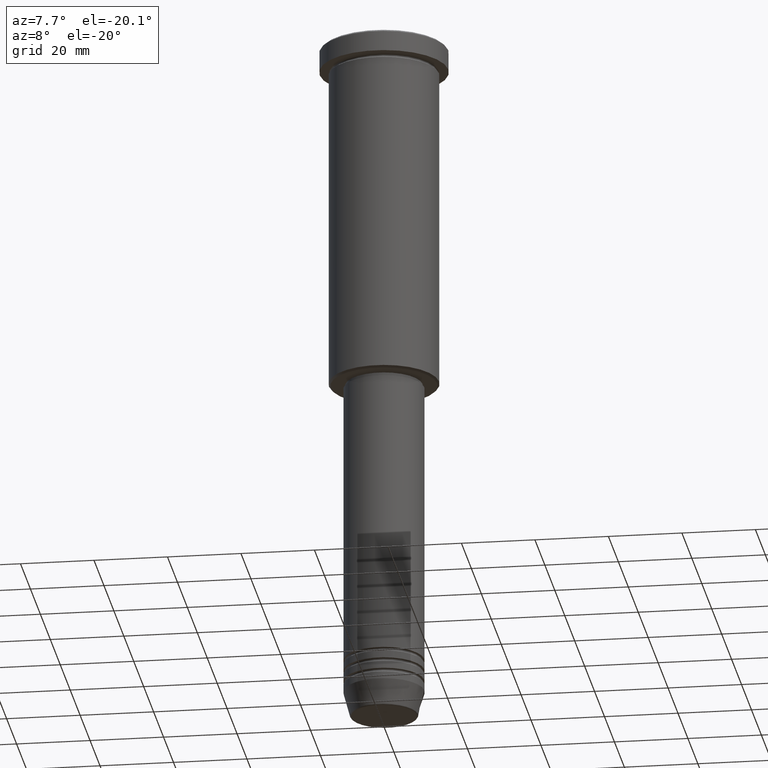
[diagram: clean part render]
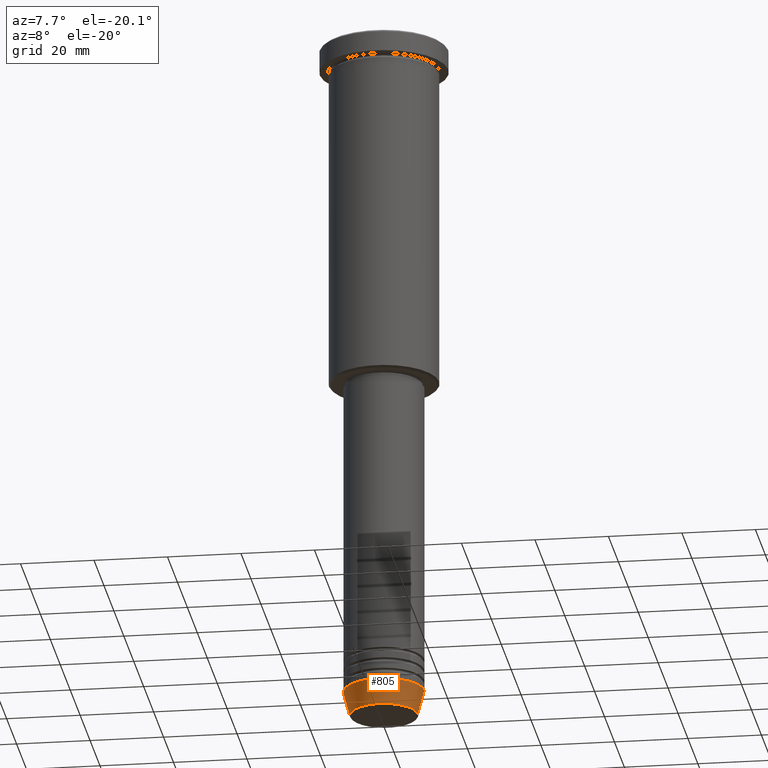
[diagram: same view with one face highlighted and labeled with its STEP entity id]
A machine part, auxiliary view. The second image highlights one B-rep face of the part: STEP entity #805.
In plain terms, the highlighted conical surface has half-angle 15 deg.
Its self-contained STEP definition (entity closure, byte-faithful):
#41 = AXIS2_PLACEMENT_3D ( 'NONE', #1157, #617, #975 ) ;
#65 = EDGE_CURVE ( 'NONE', #717, #974, #320, .T. ) ;
#80 = ORIENTED_EDGE ( 'NONE', *, *, #623, .F. ) ;
#221 = LINE ( 'NONE', #949, #628 ) ;
#295 = CIRCLE ( 'NONE', #1094, 9.223655072137194821 ) ;
#303 = CARTESIAN_POINT ( 'NONE',  ( 11.00000000000000000, 0.000000000000000000, -184.0000000000000284 ) ) ;
#320 = LINE ( 'NONE', #303, #855 ) ;
#321 = VERTEX_POINT ( 'NONE', #620 ) ;
#324 = FACE_OUTER_BOUND ( 'NONE', #1113, .T. ) ;
#333 = CARTESIAN_POINT ( 'NONE',  ( 0.000000000000000000, 0.000000000000000000, -190.6294095225512422 ) ) ;
#481 = VERTEX_POINT ( 'NONE', #1093 ) ;
#487 = DIRECTION ( 'NONE',  ( -0.000000000000000000, -0.000000000000000000, 1.000000000000000000 ) ) ;
#530 = ORIENTED_EDGE ( 'NONE', *, *, #862, .T. ) ;
#559 = DIRECTION ( 'NONE',  ( -0.2588190451025213501, 3.169619151431772337E-17, 0.9659258262890680902 ) ) ;
#604 = DIRECTION ( 'NONE',  ( -0.000000000000000000, -0.000000000000000000, 1.000000000000000000 ) ) ;
#617 = DIRECTION ( 'NONE',  ( -0.000000000000000000, -0.000000000000000000, 1.000000000000000000 ) ) ;
#620 = CARTESIAN_POINT ( 'NONE',  ( -9.223655072137194821, 1.238341722557647596E-15, -190.6294095225512422 ) ) ;
#623 = EDGE_CURVE ( 'NONE', #481, #974, #1091, .T. ) ;
#626 = AXIS2_PLACEMENT_3D ( 'NONE', #773, #487, #759 ) ;
#628 = VECTOR ( 'NONE', #559, 1000.000000000000000 ) ;
#637 = ORIENTED_EDGE ( 'NONE', *, *, #1172, .F. ) ;
#678 = DIRECTION ( 'NONE',  ( 0.2588190451025213501, 0.000000000000000000, 0.9659258262890680902 ) ) ;
#717 = VERTEX_POINT ( 'NONE', #763 ) ;
#759 = DIRECTION ( 'NONE',  ( 1.000000000000000000, 0.000000000000000000, 0.000000000000000000 ) ) ;
#763 = CARTESIAN_POINT ( 'NONE',  ( 9.223655072137194821, 0.000000000000000000, -190.6294095225512422 ) ) ;
#773 = CARTESIAN_POINT ( 'NONE',  ( 0.000000000000000000, 0.000000000000000000, -184.0000000000000284 ) ) ;
#805 = ADVANCED_FACE ( 'NONE', ( #324 ), #947, .T. ) ;
#828 = CARTESIAN_POINT ( 'NONE',  ( 11.00000000000000000, 0.000000000000000000, -184.0000000000000284 ) ) ;
#855 = VECTOR ( 'NONE', #678, 1000.000000000000000 ) ;
#862 = EDGE_CURVE ( 'NONE', #321, #717, #295, .T. ) ;
#947 = CONICAL_SURFACE ( 'NONE', #41, 11.00000000000000000, 0.2617993877991500740 ) ;
#948 = ORIENTED_EDGE ( 'NONE', *, *, #65, .T. ) ;
#949 = CARTESIAN_POINT ( 'NONE',  ( -11.00000000000000000, 1.347111479062088405E-15, -184.0000000000000284 ) ) ;
#965 = DIRECTION ( 'NONE',  ( 1.000000000000000000, 0.000000000000000000, 0.000000000000000000 ) ) ;
#974 = VERTEX_POINT ( 'NONE', #828 ) ;
#975 = DIRECTION ( 'NONE',  ( 1.000000000000000000, 0.000000000000000000, 0.000000000000000000 ) ) ;
#1091 = CIRCLE ( 'NONE', #626, 11.00000000000000000 ) ;
#1093 = CARTESIAN_POINT ( 'NONE',  ( -11.00000000000000000, 1.347111479062088405E-15, -184.0000000000000284 ) ) ;
#1094 = AXIS2_PLACEMENT_3D ( 'NONE', #333, #604, #965 ) ;
#1113 = EDGE_LOOP ( 'NONE', ( #637, #530, #948, #80 ) ) ;
#1157 = CARTESIAN_POINT ( 'NONE',  ( 0.000000000000000000, 0.000000000000000000, -184.0000000000000284 ) ) ;
#1172 = EDGE_CURVE ( 'NONE', #321, #481, #221, .T. ) ;